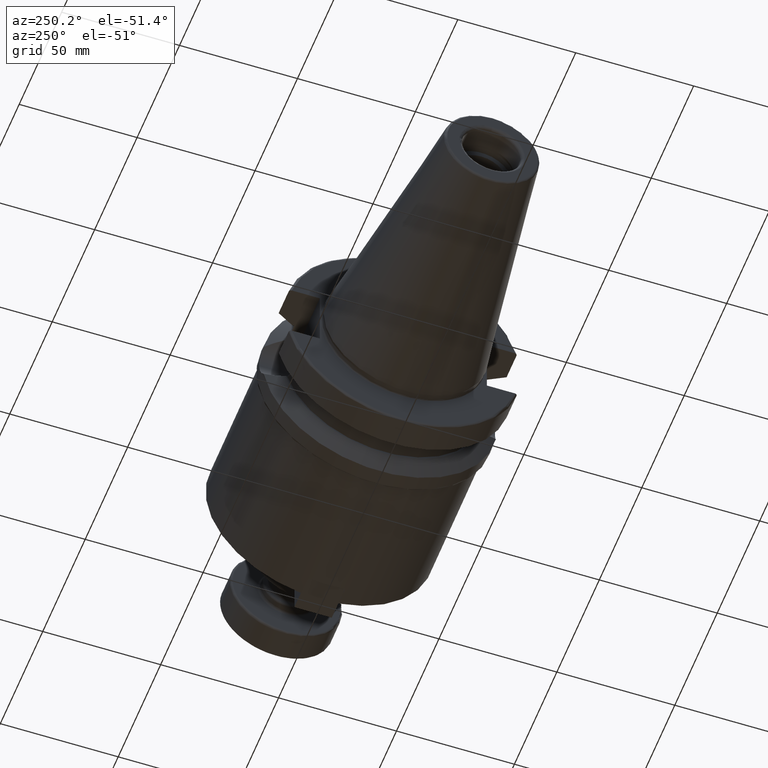
[diagram: clean part render]
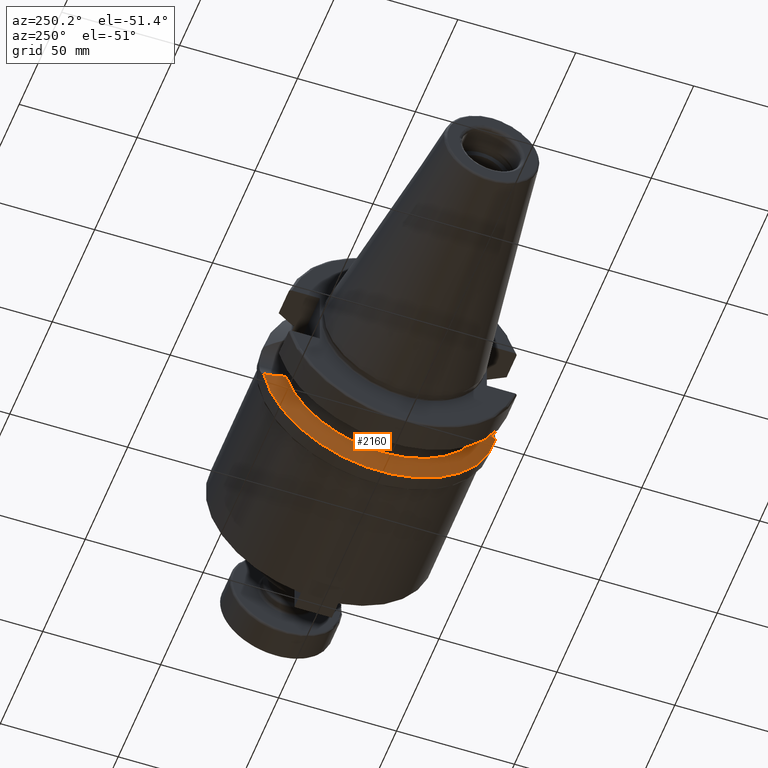
[diagram: same view with one face highlighted and labeled with its STEP entity id]
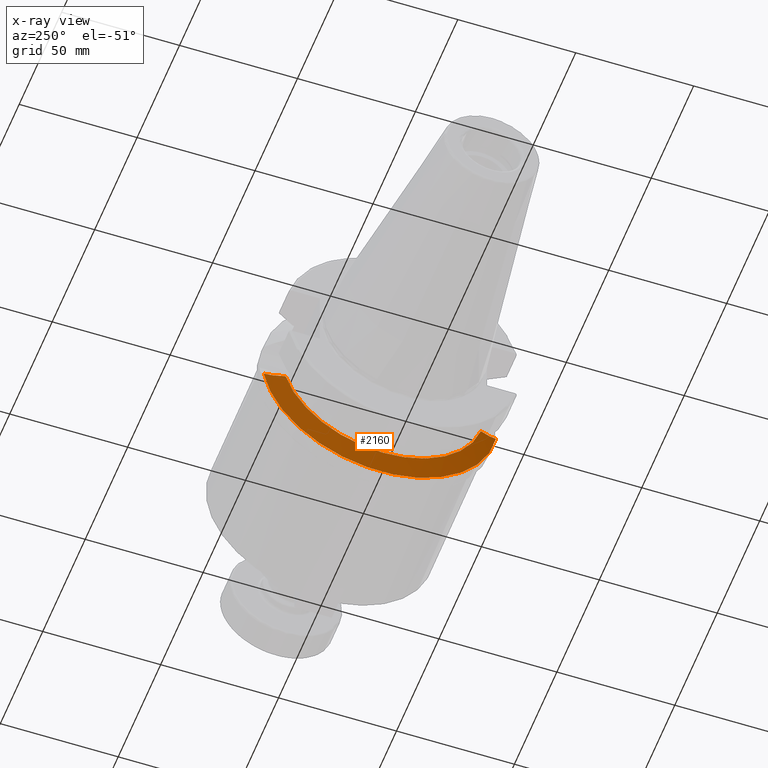
[diagram: x-ray of the same camera — body ghosted, the highlighted face saturated]
A machine part, auxiliary view. The second image highlights one B-rep face of the part: STEP entity #2160.
The next image is the same camera in x-ray: the body ghosted, the highlighted face saturated — about 0% of this face is hidden behind the body in this view.
In plain terms, the highlighted conical surface has half-angle 60.125 deg.
Its self-contained STEP definition (entity closure, byte-faithful):
#464=B_SPLINE_CURVE_WITH_KNOTS('',3,(#3491,#3492,#3493,#3494,#3495,#3496),
 .UNSPECIFIED.,.F.,.F.,(4,2,4),(4.84387686434585,5.20294199056316,5.74499439715654),
 .UNSPECIFIED.);
#472=B_SPLINE_CURVE_WITH_KNOTS('',3,(#3607,#3608,#3609,#3610,#3611,#3612),
 .UNSPECIFIED.,.F.,.F.,(4,2,4),(1.70597184072793,2.24802424732131,2.60708937353861),
 .UNSPECIFIED.);
#513=CONICAL_SURFACE('',#2442,46.4904524201025,1.04937921276159);
#565=CIRCLE('',#2439,50.);
#568=CIRCLE('',#2443,42.9809048402051);
#693=FACE_OUTER_BOUND('',#806,.T.);
#806=EDGE_LOOP('',(#1703,#1704,#1705,#1706));
#1176=VERTEX_POINT('',#3488);
#1177=VERTEX_POINT('',#3490);
#1199=VERTEX_POINT('',#3589);
#1201=VERTEX_POINT('',#3605);
#1361=EDGE_CURVE('',#1177,#1176,#464,.T.);
#1387=EDGE_CURVE('',#1177,#1199,#565,.T.);
#1391=EDGE_CURVE('',#1176,#1201,#568,.T.);
#1392=EDGE_CURVE('',#1201,#1199,#472,.T.);
#1703=ORIENTED_EDGE('',*,*,#1361,.T.);
#1704=ORIENTED_EDGE('',*,*,#1391,.T.);
#1705=ORIENTED_EDGE('',*,*,#1392,.T.);
#1706=ORIENTED_EDGE('',*,*,#1387,.F.);
#2160=ADVANCED_FACE('',(#693),#513,.T.);
#2439=AXIS2_PLACEMENT_3D('',#3590,#2823,#2824);
#2442=AXIS2_PLACEMENT_3D('',#3604,#2829,#2830);
#2443=AXIS2_PLACEMENT_3D('',#3606,#2831,#2832);
#2823=DIRECTION('center_axis',(1.,0.,0.));
#2824=DIRECTION('ref_axis',(0.,0.,-1.));
#2829=DIRECTION('center_axis',(1.,0.,0.));
#2830=DIRECTION('ref_axis',(0.,1.,0.));
#2831=DIRECTION('center_axis',(1.,0.,0.));
#2832=DIRECTION('ref_axis',(0.,0.,-1.));
#3488=CARTESIAN_POINT('',(26.7,-41.388865421545,-11.5896505555603));
#3490=CARTESIAN_POINT('',(30.732084412946,-49.2614843635149,-8.56190155883473));
#3491=CARTESIAN_POINT('Ctrl Pts',(30.732084412946,-49.2614843635149,-8.56190155883472));
#3492=CARTESIAN_POINT('Ctrl Pts',(30.2082188762695,-48.2339624041648,-9.14818764948575));
#3493=CARTESIAN_POINT('Ctrl Pts',(29.6692681874855,-47.1784655131599,-9.64228850610742));
#3494=CARTESIAN_POINT('Ctrl Pts',(28.3833872619345,-44.664615633924,-10.6667071522788));
#3495=CARTESIAN_POINT('Ctrl Pts',(27.5575735603595,-43.0541580056802,-11.1789795661998));
#3496=CARTESIAN_POINT('Ctrl Pts',(26.7,-41.388865421545,-11.5896505555603));
#3589=CARTESIAN_POINT('',(30.732084412946,49.2614843635149,-8.56190155883473));
#3590=CARTESIAN_POINT('Origin',(30.732084412946,0.,0.));
#3604=CARTESIAN_POINT('Origin',(28.716042206473,0.,0.));
#3605=CARTESIAN_POINT('',(26.7,41.388865421545,-11.5896505555603));
#3606=CARTESIAN_POINT('Origin',(26.7,0.,0.));
#3607=CARTESIAN_POINT('Ctrl Pts',(26.7,41.388865421545,-11.5896505555603));
#3608=CARTESIAN_POINT('Ctrl Pts',(27.5575735603595,43.0541580056802,-11.1789795661998));
#3609=CARTESIAN_POINT('Ctrl Pts',(28.3833872619345,44.664615633924,-10.6667071522788));
#3610=CARTESIAN_POINT('Ctrl Pts',(29.6692681874855,47.1784655131599,-9.64228850610742));
#3611=CARTESIAN_POINT('Ctrl Pts',(30.2082188762695,48.2339624041648,-9.14818764948575));
#3612=CARTESIAN_POINT('Ctrl Pts',(30.732084412946,49.2614843635149,-8.56190155883473));